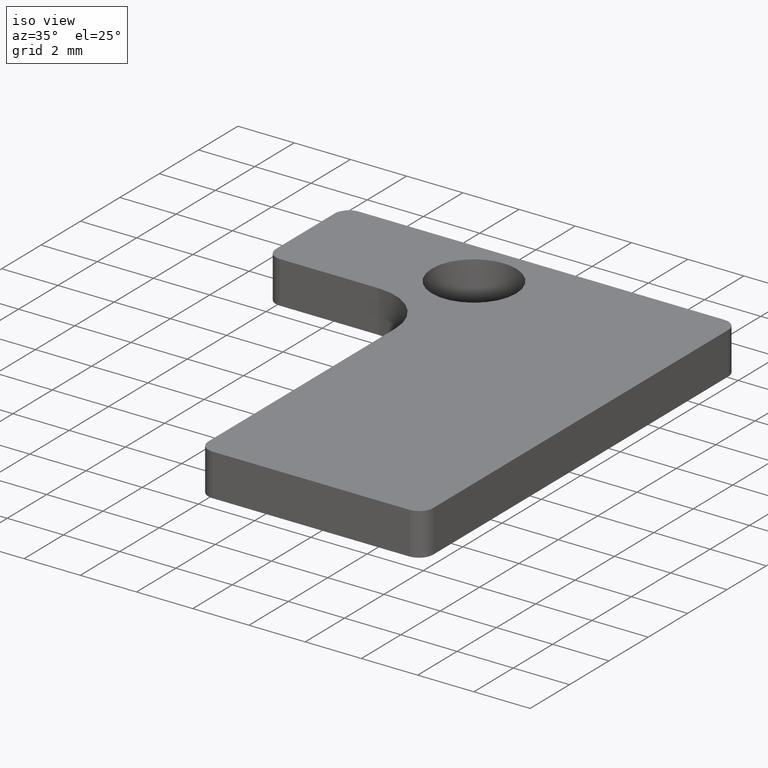
[diagram: clean part render]
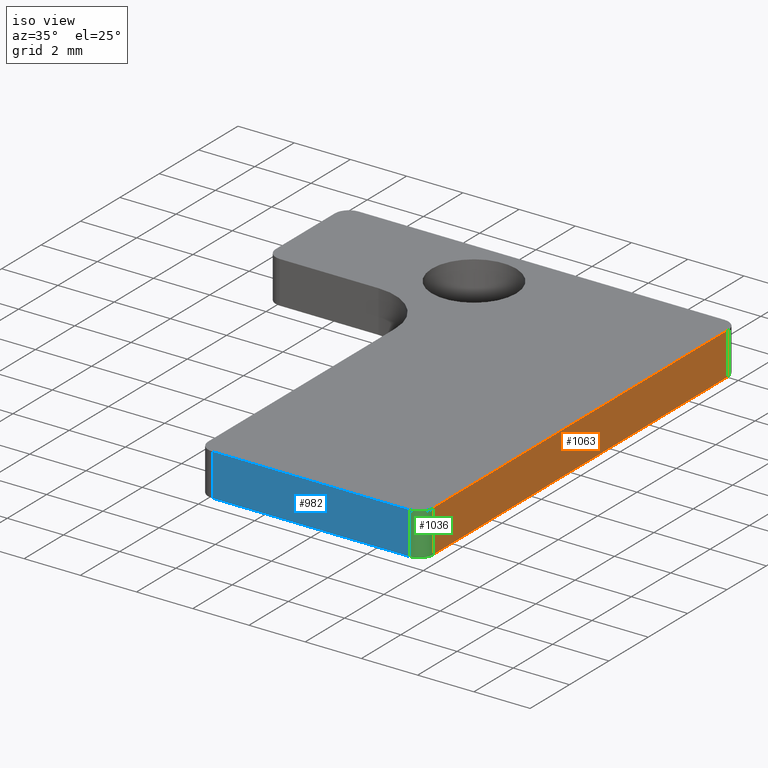
[diagram: same view with three faces highlighted in distinct colors, each labeled with its STEP entity id]
A machine part, iso view with three faces highlighted in distinct colors.
Their STEP definitions:

[orange] entity #1063 — the highlighted planar face has unit normal (-1, 0, 0).
#44 = PLANE('',#45);
#45 = AXIS2_PLACEMENT_3D('',#46,#47,#48);
#46 = CARTESIAN_POINT('',(2.2,9.2,0.));
#47 = DIRECTION('',(0.,0.,1.));
#48 = DIRECTION('',(1.,0.,0.));
#100 = PLANE('',#101);
#101 = AXIS2_PLACEMENT_3D('',#102,#103,#104);
#102 = CARTESIAN_POINT('',(2.2,9.2,1.5));
#103 = DIRECTION('',(0.,0.,1.));
#104 = DIRECTION('',(1.,0.,0.));
#256 = VERTEX_POINT('',#257);
#257 = CARTESIAN_POINT('',(8.,0.5,0.));
#272 = CYLINDRICAL_SURFACE('',#273,0.5);
#273 = AXIS2_PLACEMENT_3D('',#274,#275,#276);
#274 = CARTESIAN_POINT('',(7.5,0.5,0.));
#275 = DIRECTION('',(0.,0.,1.));
#276 = DIRECTION('',(0.,-1.,0.));
#284 = EDGE_CURVE('',#256,#285,#287,.T.);
#285 = VERTEX_POINT('',#286);
#286 = CARTESIAN_POINT('',(8.,15.5,0.));
#287 = SURFACE_CURVE('',#288,(#292,#299),.PCURVE_S1.);
#288 = LINE('',#289,#290);
#289 = CARTESIAN_POINT('',(8.,0.,0.));
#290 = VECTOR('',#291,1.);
#291 = DIRECTION('',(0.,1.,0.));
#292 = PCURVE('',#44,#293);
#293 = DEFINITIONAL_REPRESENTATION('',(#294),#298);
#294 = LINE('',#295,#296);
#295 = CARTESIAN_POINT('',(5.8,-9.2));
#296 = VECTOR('',#297,1.);
#297 = DIRECTION('',(0.,1.));
#298 = ( GEOMETRIC_REPRESENTATION_CONTEXT(2) 
PARAMETRIC_REPRESENTATION_CONTEXT() REPRESENTATION_CONTEXT('2D SPACE',''
  ) );
#299 = PCURVE('',#300,#305);
#300 = PLANE('',#301);
#301 = AXIS2_PLACEMENT_3D('',#302,#303,#304);
#302 = CARTESIAN_POINT('',(8.,0.,0.));
#303 = DIRECTION('',(-1.,0.,0.));
#304 = DIRECTION('',(0.,1.,0.));
#305 = DEFINITIONAL_REPRESENTATION('',(#306),#310);
#306 = LINE('',#307,#308);
#307 = CARTESIAN_POINT('',(0.,0.));
#308 = VECTOR('',#309,1.);
#309 = DIRECTION('',(1.,0.));
#310 = ( GEOMETRIC_REPRESENTATION_CONTEXT(2) 
PARAMETRIC_REPRESENTATION_CONTEXT() REPRESENTATION_CONTEXT('2D SPACE',''
  ) );
#333 = CYLINDRICAL_SURFACE('',#334,0.5);
#334 = AXIS2_PLACEMENT_3D('',#335,#336,#337);
#335 = CARTESIAN_POINT('',(7.5,15.5,0.));
#336 = DIRECTION('',(0.,0.,1.));
#337 = DIRECTION('',(-0.,1.,0.));
#675 = VERTEX_POINT('',#676);
#676 = CARTESIAN_POINT('',(8.,0.5,1.5));
#698 = EDGE_CURVE('',#675,#699,#701,.T.);
#699 = VERTEX_POINT('',#700);
#700 = CARTESIAN_POINT('',(8.,15.5,1.5));
#701 = SURFACE_CURVE('',#702,(#706,#713),.PCURVE_S1.);
#702 = LINE('',#703,#704);
#703 = CARTESIAN_POINT('',(8.,0.,1.5));
#704 = VECTOR('',#705,1.);
#705 = DIRECTION('',(0.,1.,0.));
#706 = PCURVE('',#100,#707);
#707 = DEFINITIONAL_REPRESENTATION('',(#708),#712);
#708 = LINE('',#709,#710);
#709 = CARTESIAN_POINT('',(5.8,-9.2));
#710 = VECTOR('',#711,1.);
#711 = DIRECTION('',(0.,1.));
#712 = ( GEOMETRIC_REPRESENTATION_CONTEXT(2) 
PARAMETRIC_REPRESENTATION_CONTEXT() REPRESENTATION_CONTEXT('2D SPACE',''
  ) );
#713 = PCURVE('',#300,#714);
#714 = DEFINITIONAL_REPRESENTATION('',(#715),#719);
#715 = LINE('',#716,#717);
#716 = CARTESIAN_POINT('',(0.,-1.5));
#717 = VECTOR('',#718,1.);
#718 = DIRECTION('',(1.,0.));
#719 = ( GEOMETRIC_REPRESENTATION_CONTEXT(2) 
PARAMETRIC_REPRESENTATION_CONTEXT() REPRESENTATION_CONTEXT('2D SPACE',''
  ) );
#1014 = EDGE_CURVE('',#285,#699,#1015,.T.);
#1015 = SURFACE_CURVE('',#1016,(#1020,#1027),.PCURVE_S1.);
#1016 = LINE('',#1017,#1018);
#1017 = CARTESIAN_POINT('',(8.,15.5,0.));
#1018 = VECTOR('',#1019,1.);
#1019 = DIRECTION('',(0.,0.,1.));
#1020 = PCURVE('',#333,#1021);
#1021 = DEFINITIONAL_REPRESENTATION('',(#1022),#1026);
#1022 = LINE('',#1023,#1024);
#1023 = CARTESIAN_POINT('',(-1.570796326795,0.));
#1024 = VECTOR('',#1025,1.);
#1025 = DIRECTION('',(-0.,1.));
#1026 = ( GEOMETRIC_REPRESENTATION_CONTEXT(2) 
PARAMETRIC_REPRESENTATION_CONTEXT() REPRESENTATION_CONTEXT('2D SPACE',''
  ) );
#1027 = PCURVE('',#300,#1028);
#1028 = DEFINITIONAL_REPRESENTATION('',(#1029),#1033);
#1029 = LINE('',#1030,#1031);
#1030 = CARTESIAN_POINT('',(15.5,0.));
#1031 = VECTOR('',#1032,1.);
#1032 = DIRECTION('',(0.,-1.));
#1033 = ( GEOMETRIC_REPRESENTATION_CONTEXT(2) 
PARAMETRIC_REPRESENTATION_CONTEXT() REPRESENTATION_CONTEXT('2D SPACE',''
  ) );
#1041 = EDGE_CURVE('',#256,#675,#1042,.T.);
#1042 = SURFACE_CURVE('',#1043,(#1047,#1054),.PCURVE_S1.);
#1043 = LINE('',#1044,#1045);
#1044 = CARTESIAN_POINT('',(8.,0.5,0.));
#1045 = VECTOR('',#1046,1.);
#1046 = DIRECTION('',(0.,0.,1.));
#1047 = PCURVE('',#272,#1048);
#1048 = DEFINITIONAL_REPRESENTATION('',(#1049),#1053);
#1049 = LINE('',#1050,#1051);
#1050 = CARTESIAN_POINT('',(1.570796326795,0.));
#1051 = VECTOR('',#1052,1.);
#1052 = DIRECTION('',(0.,1.));
#1053 = ( GEOMETRIC_REPRESENTATION_CONTEXT(2) 
PARAMETRIC_REPRESENTATION_CONTEXT() REPRESENTATION_CONTEXT('2D SPACE',''
  ) );
#1054 = PCURVE('',#300,#1055);
#1055 = DEFINITIONAL_REPRESENTATION('',(#1056),#1060);
#1056 = LINE('',#1057,#1058);
#1057 = CARTESIAN_POINT('',(0.5,0.));
#1058 = VECTOR('',#1059,1.);
#1059 = DIRECTION('',(0.,-1.));
#1060 = ( GEOMETRIC_REPRESENTATION_CONTEXT(2) 
PARAMETRIC_REPRESENTATION_CONTEXT() REPRESENTATION_CONTEXT('2D SPACE',''
  ) );
#1063 = ADVANCED_FACE('',(#1064),#300,.F.);
#1064 = FACE_BOUND('',#1065,.F.);
#1065 = EDGE_LOOP('',(#1066,#1067,#1068,#1069));
#1066 = ORIENTED_EDGE('',*,*,#284,.F.);
#1067 = ORIENTED_EDGE('',*,*,#1041,.T.);
#1068 = ORIENTED_EDGE('',*,*,#698,.T.);
#1069 = ORIENTED_EDGE('',*,*,#1014,.F.);

[blue] entity #982 — the highlighted planar face has unit normal (0, 1, 0).
#44 = PLANE('',#45);
#45 = AXIS2_PLACEMENT_3D('',#46,#47,#48);
#46 = CARTESIAN_POINT('',(2.2,9.2,0.));
#47 = DIRECTION('',(0.,0.,1.));
#48 = DIRECTION('',(1.,0.,0.));
#100 = PLANE('',#101);
#101 = AXIS2_PLACEMENT_3D('',#102,#103,#104);
#102 = CARTESIAN_POINT('',(2.2,9.2,1.5));
#103 = DIRECTION('',(0.,0.,1.));
#104 = DIRECTION('',(1.,0.,0.));
#199 = VERTEX_POINT('',#200);
#200 = CARTESIAN_POINT('',(0.5,-1.110223024625E-16,0.));
#215 = CYLINDRICAL_SURFACE('',#216,0.5);
#216 = AXIS2_PLACEMENT_3D('',#217,#218,#219);
#217 = CARTESIAN_POINT('',(0.5,0.5,0.));
#218 = DIRECTION('',(0.,0.,1.));
#219 = DIRECTION('',(-1.,0.,0.));
#227 = EDGE_CURVE('',#199,#228,#230,.T.);
#228 = VERTEX_POINT('',#229);
#229 = CARTESIAN_POINT('',(7.5,-1.110223024625E-16,0.));
#230 = SURFACE_CURVE('',#231,(#235,#242),.PCURVE_S1.);
#231 = LINE('',#232,#233);
#232 = CARTESIAN_POINT('',(0.,0.,0.));
#233 = VECTOR('',#234,1.);
#234 = DIRECTION('',(1.,0.,0.));
#235 = PCURVE('',#44,#236);
#236 = DEFINITIONAL_REPRESENTATION('',(#237),#241);
#237 = LINE('',#238,#239);
#238 = CARTESIAN_POINT('',(-2.2,-9.2));
#239 = VECTOR('',#240,1.);
#240 = DIRECTION('',(1.,0.));
#241 = ( GEOMETRIC_REPRESENTATION_CONTEXT(2) 
PARAMETRIC_REPRESENTATION_CONTEXT() REPRESENTATION_CONTEXT('2D SPACE',''
  ) );
#242 = PCURVE('',#243,#248);
#243 = PLANE('',#244);
#244 = AXIS2_PLACEMENT_3D('',#245,#246,#247);
#245 = CARTESIAN_POINT('',(0.,0.,0.));
#246 = DIRECTION('',(0.,1.,0.));
#247 = DIRECTION('',(1.,0.,0.));
#248 = DEFINITIONAL_REPRESENTATION('',(#249),#253);
#249 = LINE('',#250,#251);
#250 = CARTESIAN_POINT('',(0.,0.));
#251 = VECTOR('',#252,1.);
#252 = DIRECTION('',(1.,0.));
#253 = ( GEOMETRIC_REPRESENTATION_CONTEXT(2) 
PARAMETRIC_REPRESENTATION_CONTEXT() REPRESENTATION_CONTEXT('2D SPACE',''
  ) );
#272 = CYLINDRICAL_SURFACE('',#273,0.5);
#273 = AXIS2_PLACEMENT_3D('',#274,#275,#276);
#274 = CARTESIAN_POINT('',(7.5,0.5,0.));
#275 = DIRECTION('',(0.,0.,1.));
#276 = DIRECTION('',(0.,-1.,0.));
#628 = VERTEX_POINT('',#629);
#629 = CARTESIAN_POINT('',(0.5,-1.110223024625E-16,1.5));
#651 = EDGE_CURVE('',#628,#652,#654,.T.);
#652 = VERTEX_POINT('',#653);
#653 = CARTESIAN_POINT('',(7.5,-1.110223024625E-16,1.5));
#654 = SURFACE_CURVE('',#655,(#659,#666),.PCURVE_S1.);
#655 = LINE('',#656,#657);
#656 = CARTESIAN_POINT('',(0.,0.,1.5));
#657 = VECTOR('',#658,1.);
#658 = DIRECTION('',(1.,0.,0.));
#659 = PCURVE('',#100,#660);
#660 = DEFINITIONAL_REPRESENTATION('',(#661),#665);
#661 = LINE('',#662,#663);
#662 = CARTESIAN_POINT('',(-2.2,-9.2));
#663 = VECTOR('',#664,1.);
#664 = DIRECTION('',(1.,0.));
#665 = ( GEOMETRIC_REPRESENTATION_CONTEXT(2) 
PARAMETRIC_REPRESENTATION_CONTEXT() REPRESENTATION_CONTEXT('2D SPACE',''
  ) );
#666 = PCURVE('',#243,#667);
#667 = DEFINITIONAL_REPRESENTATION('',(#668),#672);
#668 = LINE('',#669,#670);
#669 = CARTESIAN_POINT('',(0.,-1.5));
#670 = VECTOR('',#671,1.);
#671 = DIRECTION('',(1.,0.));
#672 = ( GEOMETRIC_REPRESENTATION_CONTEXT(2) 
PARAMETRIC_REPRESENTATION_CONTEXT() REPRESENTATION_CONTEXT('2D SPACE',''
  ) );
#933 = EDGE_CURVE('',#199,#628,#934,.T.);
#934 = SURFACE_CURVE('',#935,(#939,#946),.PCURVE_S1.);
#935 = LINE('',#936,#937);
#936 = CARTESIAN_POINT('',(0.5,-1.110223024625E-16,0.));
#937 = VECTOR('',#938,1.);
#938 = DIRECTION('',(0.,0.,1.));
#939 = PCURVE('',#215,#940);
#940 = DEFINITIONAL_REPRESENTATION('',(#941),#945);
#941 = LINE('',#942,#943);
#942 = CARTESIAN_POINT('',(1.570796326795,0.));
#943 = VECTOR('',#944,1.);
#944 = DIRECTION('',(0.,1.));
#945 = ( GEOMETRIC_REPRESENTATION_CONTEXT(2) 
PARAMETRIC_REPRESENTATION_CONTEXT() REPRESENTATION_CONTEXT('2D SPACE',''
  ) );
#946 = PCURVE('',#243,#947);
#947 = DEFINITIONAL_REPRESENTATION('',(#948),#952);
#948 = LINE('',#949,#950);
#949 = CARTESIAN_POINT('',(0.5,0.));
#950 = VECTOR('',#951,1.);
#951 = DIRECTION('',(0.,-1.));
#952 = ( GEOMETRIC_REPRESENTATION_CONTEXT(2) 
PARAMETRIC_REPRESENTATION_CONTEXT() REPRESENTATION_CONTEXT('2D SPACE',''
  ) );
#982 = ADVANCED_FACE('',(#983),#243,.F.);
#983 = FACE_BOUND('',#984,.F.);
#984 = EDGE_LOOP('',(#985,#986,#987,#988));
#985 = ORIENTED_EDGE('',*,*,#227,.F.);
#986 = ORIENTED_EDGE('',*,*,#933,.T.);
#987 = ORIENTED_EDGE('',*,*,#651,.T.);
#988 = ORIENTED_EDGE('',*,*,#989,.F.);
#989 = EDGE_CURVE('',#228,#652,#990,.T.);
#990 = SURFACE_CURVE('',#991,(#995,#1002),.PCURVE_S1.);
#991 = LINE('',#992,#993);
#992 = CARTESIAN_POINT('',(7.5,-1.110223024625E-16,0.));
#993 = VECTOR('',#994,1.);
#994 = DIRECTION('',(0.,0.,1.));
#995 = PCURVE('',#243,#996);
#996 = DEFINITIONAL_REPRESENTATION('',(#997),#1001);
#997 = LINE('',#998,#999);
#998 = CARTESIAN_POINT('',(7.5,0.));
#999 = VECTOR('',#1000,1.);
#1000 = DIRECTION('',(0.,-1.));
#1001 = ( GEOMETRIC_REPRESENTATION_CONTEXT(2) 
PARAMETRIC_REPRESENTATION_CONTEXT() REPRESENTATION_CONTEXT('2D SPACE',''
  ) );
#1002 = PCURVE('',#272,#1003);
#1003 = DEFINITIONAL_REPRESENTATION('',(#1004),#1008);
#1004 = LINE('',#1005,#1006);
#1005 = CARTESIAN_POINT('',(0.,0.));
#1006 = VECTOR('',#1007,1.);
#1007 = DIRECTION('',(0.,1.));
#1008 = ( GEOMETRIC_REPRESENTATION_CONTEXT(2) 
PARAMETRIC_REPRESENTATION_CONTEXT() REPRESENTATION_CONTEXT('2D SPACE',''
  ) );

[green] entity #1036 — the highlighted cylindrical surface (edge-blend (fillet) strip) has radius 0.5 mm, axis along (0, 0, 1).
#44 = PLANE('',#45);
#45 = AXIS2_PLACEMENT_3D('',#46,#47,#48);
#46 = CARTESIAN_POINT('',(2.2,9.2,0.));
#47 = DIRECTION('',(0.,0.,1.));
#48 = DIRECTION('',(1.,0.,0.));
#100 = PLANE('',#101);
#101 = AXIS2_PLACEMENT_3D('',#102,#103,#104);
#102 = CARTESIAN_POINT('',(2.2,9.2,1.5));
#103 = DIRECTION('',(0.,0.,1.));
#104 = DIRECTION('',(1.,0.,0.));
#228 = VERTEX_POINT('',#229);
#229 = CARTESIAN_POINT('',(7.5,-1.110223024625E-16,0.));
#243 = PLANE('',#244);
#244 = AXIS2_PLACEMENT_3D('',#245,#246,#247);
#245 = CARTESIAN_POINT('',(0.,0.,0.));
#246 = DIRECTION('',(0.,1.,0.));
#247 = DIRECTION('',(1.,0.,0.));
#255 = EDGE_CURVE('',#228,#256,#258,.T.);
#256 = VERTEX_POINT('',#257);
#257 = CARTESIAN_POINT('',(8.,0.5,0.));
#258 = SURFACE_CURVE('',#259,(#264,#271),.PCURVE_S1.);
#259 = CIRCLE('',#260,0.5);
#260 = AXIS2_PLACEMENT_3D('',#261,#262,#263);
#261 = CARTESIAN_POINT('',(7.5,0.5,0.));
#262 = DIRECTION('',(0.,0.,1.));
#263 = DIRECTION('',(0.,-1.,0.));
#264 = PCURVE('',#44,#265);
#265 = DEFINITIONAL_REPRESENTATION('',(#266),#270);
#266 = CIRCLE('',#267,0.5);
#267 = AXIS2_PLACEMENT_2D('',#268,#269);
#268 = CARTESIAN_POINT('',(5.3,-8.7));
#269 = DIRECTION('',(0.,-1.));
#270 = ( GEOMETRIC_REPRESENTATION_CONTEXT(2) 
PARAMETRIC_REPRESENTATION_CONTEXT() REPRESENTATION_CONTEXT('2D SPACE',''
  ) );
#271 = PCURVE('',#272,#277);
#272 = CYLINDRICAL_SURFACE('',#273,0.5);
#273 = AXIS2_PLACEMENT_3D('',#274,#275,#276);
#274 = CARTESIAN_POINT('',(7.5,0.5,0.));
#275 = DIRECTION('',(0.,0.,1.));
#276 = DIRECTION('',(0.,-1.,0.));
#277 = DEFINITIONAL_REPRESENTATION('',(#278),#282);
#278 = LINE('',#279,#280);
#279 = CARTESIAN_POINT('',(0.,0.));
#280 = VECTOR('',#281,1.);
#281 = DIRECTION('',(1.,0.));
#282 = ( GEOMETRIC_REPRESENTATION_CONTEXT(2) 
PARAMETRIC_REPRESENTATION_CONTEXT() REPRESENTATION_CONTEXT('2D SPACE',''
  ) );
#300 = PLANE('',#301);
#301 = AXIS2_PLACEMENT_3D('',#302,#303,#304);
#302 = CARTESIAN_POINT('',(8.,0.,0.));
#303 = DIRECTION('',(-1.,0.,0.));
#304 = DIRECTION('',(0.,1.,0.));
#652 = VERTEX_POINT('',#653);
#653 = CARTESIAN_POINT('',(7.5,-1.110223024625E-16,1.5));
#674 = EDGE_CURVE('',#652,#675,#677,.T.);
#675 = VERTEX_POINT('',#676);
#676 = CARTESIAN_POINT('',(8.,0.5,1.5));
#677 = SURFACE_CURVE('',#678,(#683,#690),.PCURVE_S1.);
#678 = CIRCLE('',#679,0.5);
#679 = AXIS2_PLACEMENT_3D('',#680,#681,#682);
#680 = CARTESIAN_POINT('',(7.5,0.5,1.5));
#681 = DIRECTION('',(0.,0.,1.));
#682 = DIRECTION('',(0.,-1.,0.));
#683 = PCURVE('',#100,#684);
#684 = DEFINITIONAL_REPRESENTATION('',(#685),#689);
#685 = CIRCLE('',#686,0.5);
#686 = AXIS2_PLACEMENT_2D('',#687,#688);
#687 = CARTESIAN_POINT('',(5.3,-8.7));
#688 = DIRECTION('',(0.,-1.));
#689 = ( GEOMETRIC_REPRESENTATION_CONTEXT(2) 
PARAMETRIC_REPRESENTATION_CONTEXT() REPRESENTATION_CONTEXT('2D SPACE',''
  ) );
#690 = PCURVE('',#272,#691);
#691 = DEFINITIONAL_REPRESENTATION('',(#692),#696);
#692 = LINE('',#693,#694);
#693 = CARTESIAN_POINT('',(0.,1.5));
#694 = VECTOR('',#695,1.);
#695 = DIRECTION('',(1.,0.));
#696 = ( GEOMETRIC_REPRESENTATION_CONTEXT(2) 
PARAMETRIC_REPRESENTATION_CONTEXT() REPRESENTATION_CONTEXT('2D SPACE',''
  ) );
#989 = EDGE_CURVE('',#228,#652,#990,.T.);
#990 = SURFACE_CURVE('',#991,(#995,#1002),.PCURVE_S1.);
#991 = LINE('',#992,#993);
#992 = CARTESIAN_POINT('',(7.5,-1.110223024625E-16,0.));
#993 = VECTOR('',#994,1.);
#994 = DIRECTION('',(0.,0.,1.));
#995 = PCURVE('',#243,#996);
#996 = DEFINITIONAL_REPRESENTATION('',(#997),#1001);
#997 = LINE('',#998,#999);
#998 = CARTESIAN_POINT('',(7.5,0.));
#999 = VECTOR('',#1000,1.);
#1000 = DIRECTION('',(0.,-1.));
#1001 = ( GEOMETRIC_REPRESENTATION_CONTEXT(2) 
PARAMETRIC_REPRESENTATION_CONTEXT() REPRESENTATION_CONTEXT('2D SPACE',''
  ) );
#1002 = PCURVE('',#272,#1003);
#1003 = DEFINITIONAL_REPRESENTATION('',(#1004),#1008);
#1004 = LINE('',#1005,#1006);
#1005 = CARTESIAN_POINT('',(0.,0.));
#1006 = VECTOR('',#1007,1.);
#1007 = DIRECTION('',(0.,1.));
#1008 = ( GEOMETRIC_REPRESENTATION_CONTEXT(2) 
PARAMETRIC_REPRESENTATION_CONTEXT() REPRESENTATION_CONTEXT('2D SPACE',''
  ) );
#1036 = ADVANCED_FACE('',(#1037),#272,.T.);
#1037 = FACE_BOUND('',#1038,.T.);
#1038 = EDGE_LOOP('',(#1039,#1040,#1061,#1062));
#1039 = ORIENTED_EDGE('',*,*,#255,.T.);
#1040 = ORIENTED_EDGE('',*,*,#1041,.T.);
#1041 = EDGE_CURVE('',#256,#675,#1042,.T.);
#1042 = SURFACE_CURVE('',#1043,(#1047,#1054),.PCURVE_S1.);
#1043 = LINE('',#1044,#1045);
#1044 = CARTESIAN_POINT('',(8.,0.5,0.));
#1045 = VECTOR('',#1046,1.);
#1046 = DIRECTION('',(0.,0.,1.));
#1047 = PCURVE('',#272,#1048);
#1048 = DEFINITIONAL_REPRESENTATION('',(#1049),#1053);
#1049 = LINE('',#1050,#1051);
#1050 = CARTESIAN_POINT('',(1.570796326795,0.));
#1051 = VECTOR('',#1052,1.);
#1052 = DIRECTION('',(0.,1.));
#1053 = ( GEOMETRIC_REPRESENTATION_CONTEXT(2) 
PARAMETRIC_REPRESENTATION_CONTEXT() REPRESENTATION_CONTEXT('2D SPACE',''
  ) );
#1054 = PCURVE('',#300,#1055);
#1055 = DEFINITIONAL_REPRESENTATION('',(#1056),#1060);
#1056 = LINE('',#1057,#1058);
#1057 = CARTESIAN_POINT('',(0.5,0.));
#1058 = VECTOR('',#1059,1.);
#1059 = DIRECTION('',(0.,-1.));
#1060 = ( GEOMETRIC_REPRESENTATION_CONTEXT(2) 
PARAMETRIC_REPRESENTATION_CONTEXT() REPRESENTATION_CONTEXT('2D SPACE',''
  ) );
#1061 = ORIENTED_EDGE('',*,*,#674,.F.);
#1062 = ORIENTED_EDGE('',*,*,#989,.F.);